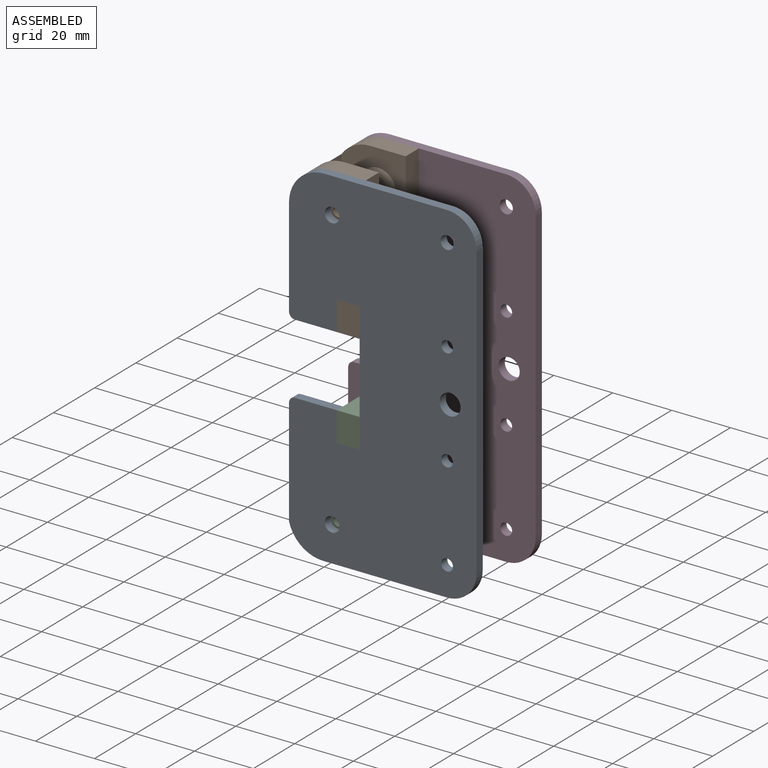
[diagram: assembled view]
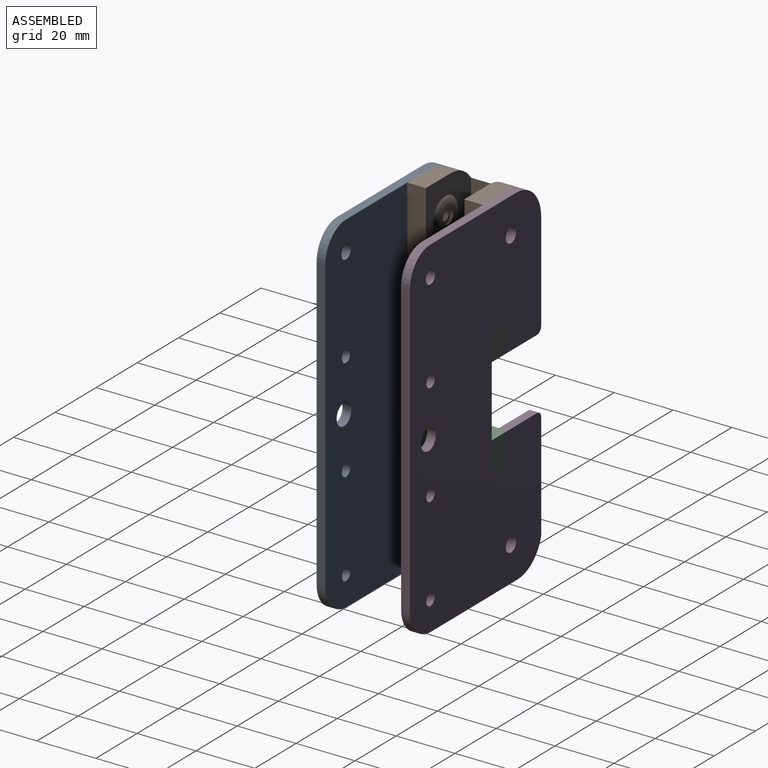
[diagram: assembled view, second angle]
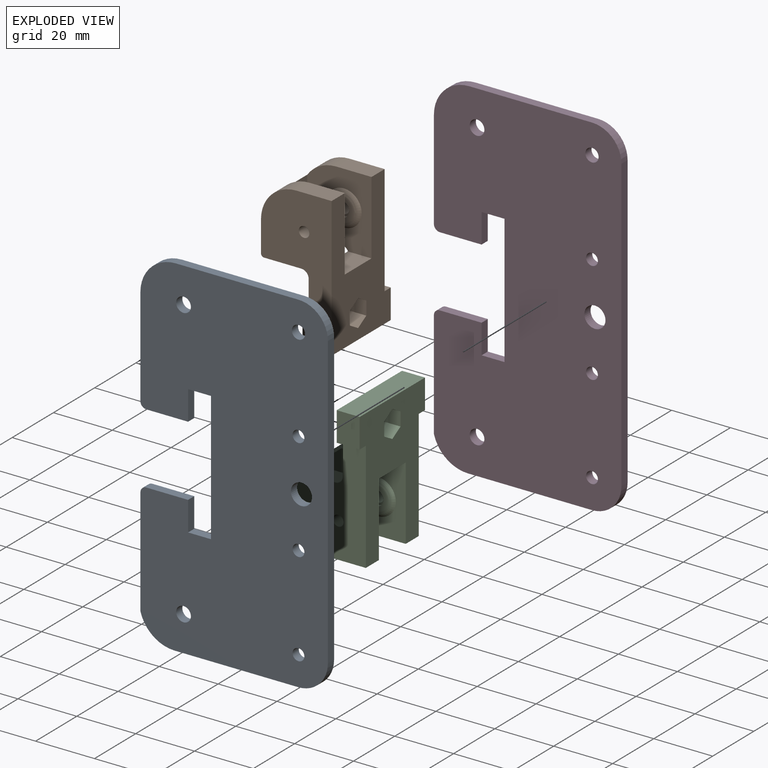
[diagram: exploded view]
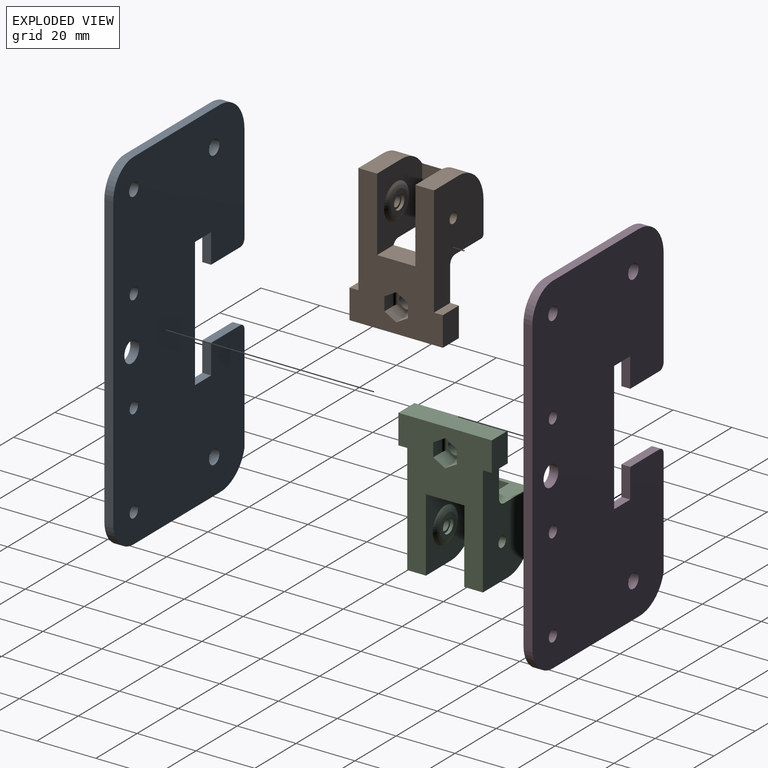
[diagram: exploded view, second angle]
ASSEMBLY  parts=4 mates=3
PART A: 27 faces, bbox 63.7x3x119 mm
  f0: plane 14.2x3mm, normal (0,0,-1), area 42.6mm2, adj f1,f24,f25,f26
  f1: plane 10x3mm, normal (1,0,0), area 30mm2, adj f0,f2,f25,f26
  f2: plane 7.8x3mm, normal (0,0,-1), area 23.4mm2, adj f1,f3,f25,f26
  f3: plane 44x3mm, normal (-1,0,0), area 132mm2, adj f2,f4,f25,f26
  f4: plane 7.8x3mm, normal (0,0,1), area 23.4mm2, adj f3,f5,f25,f26
  f5: plane 10x3mm, normal (1,0,0), area 30mm2, adj f4,f6,f25,f26
  f6: plane 14.2x3mm, normal (0,0,1), area 42.6mm2, adj f5,f7,f25,f26
  f7: cylinder r=2mm len=3mm, axis (0,1,0), area 9.4mm2, adj f6,f8,f25,f26
  f8: plane 36.5x3mm, normal (-1,0,0), area 109.5mm2, adj f7,f9,f25,f26
  f9: cylinder r=12mm len=11.62mm, axis (0,1,0), area 47.5mm2, adj f8,f10,f25,f26
  f10: plane 42.08x3mm, normal (0,0,-1), area 126.2mm2, adj f9,f11,f25,f26
  f11: cylinder r=10mm len=10mm, axis (0,1,0), area 47.1mm2, adj f10,f12,f25,f26
  f12: plane 99x3mm, normal (1,0,0), area 297mm2, adj f11,f13,f25,f26
  f13: cylinder r=10mm len=10mm, axis (0,1,0), area 47.1mm2, adj f12,f14,f25,f26
  f14: plane 41.7x3mm, normal (0,0,1), area 125.1mm2, adj f13,f15,f25,f26
  f15: cylinder r=12mm len=12mm, axis (0,1,0), area 56.5mm2, adj f14,f16,f25,f26
  f16: plane 33.5x3mm, normal (-1,0,0), area 100.5mm2, adj f15,f24,f25,f26
  f17: cylinder r=2.5mm len=5mm, axis (0,1,0), area 47.1mm2, adj f25,f26
  f18: cylinder r=2.5mm len=5mm, axis (0,1,0), area 47.1mm2, adj f25,f26
  f19: cylinder r=3.58mm len=7.16mm, axis (0,1,0), area 67.5mm2, adj f25,f26
  f20: cylinder r=2.25mm len=4.5mm, axis (0,1,0), area 42.4mm2, adj f25,f26
  f21: cylinder r=2mm len=4mm, axis (0,1,0), area 37.7mm2, adj f25,f26
  f22: cylinder r=2mm len=4mm, axis (0,1,0), area 37.7mm2, adj f25,f26
  f23: cylinder r=2mm len=4mm, axis (0,1,0), area 37.7mm2, adj f25,f26
  f24: cylinder r=2mm len=3mm, axis (0,1,0), area 9.4mm2, adj f0,f16,f25,f26
  f25: plane 119x63.7mm, normal (0,-1,0), area 6612.5mm2, adj f0,f1,f2,f3,f4,f5,f6,f7
  f26: plane 119x63.7mm, normal (0,1,0), area 6612.5mm2, adj f0,f1,f2,f3,f4,f5,f6,f7
PART B: 46 faces, bbox 24x31.7x47.5 mm
  f0: plane 37.5x24mm, normal (0,-1,0), area 633.3mm2, adj f1,f6,f7,f9,f10,f11,f13,f14
  f1: plane 47.5x31.7mm, normal (-1,0,0), area 900.3mm2, adj f0,f5,f11,f12,f15,f19,f20,f21
  f2: cylinder r=2.5mm len=5mm, axis (-1,0,0), area 59.7mm2, adj f16,f34
  f3: plane 5x5mm, normal (0,1,0), area 9.5mm2, adj f14,f24
  f4: plane 5x5mm, normal (0,-1,0), area 9.5mm2, adj f8,f22
  f5: plane 12x6.35mm, normal (0,0,1), area 76.2mm2, adj f1,f7,f15,f19
  f6: plane 25.7x12.7mm, normal (0,0,-1), area 176.2mm2, adj f0,f9,f15,f18,f19,f20,f45
  f7: cylinder r=12mm len=25.7mm, axis (0,1,0), area 334.2mm2, adj f0,f5,f10,f11,f15,f18,f19,f20
  f8: cylinder r=1.8mm len=6.35mm, axis (0,1,0), area 71.7mm2, adj f4,f15
  f9: cylinder r=2.5mm len=25.7mm, axis (0,1,0), area 63.2mm2, adj f0,f6,f13,f15,f19,f20,f21
  f10: plane 25.7x10.5mm, normal (1,0,0), area 269.8mm2, adj f0,f7,f15,f45
  f11: plane 12x6.35mm, normal (0,0,1), area 76.2mm2, adj f0,f1,f7,f20
  f12: plane 31.7x7.8mm, normal (0,0,-1), area 247.3mm2, adj f1,f13,f42,f44
  f13: plane 31.7x21.5mm, normal (1,0,0), area 499.5mm2, adj f0,f9,f12,f15,f17,f41,f42,f43
  f14: cylinder r=1.8mm len=6.35mm, axis (0,1,0), area 71.7mm2, adj f0,f3
  f15: plane 37.5x24mm, normal (0,1,0), area 633.3mm2, adj f1,f5,f6,f7,f8,f9,f10,f13
  f16: plane 7.53x7.53mm, normal (1,0,0), area 24.9mm2, adj f2,f17
  f17: torus R=3.76mm, axis (-1,0,0), area 78.5mm2, adj f13,f16
  f18: plane 18.35x13mm, normal (-1,0,0), area 238.6mm2, adj f6,f7,f19,f20
  f19: plane 25x21.85mm, normal (0,-1,0), area 398.2mm2, adj f1,f5,f6,f7,f9,f18,f21,f27
  f20: plane 25x21.85mm, normal (0,1,0), area 398.2mm2, adj f1,f6,f7,f9,f11,f18,f21,f26
  f21: plane 13x8.01mm, normal (0,0,1), area 104.1mm2, adj f1,f9,f19,f20
  f22: cylinder r=2.5mm len=5mm, axis (0,1,0), area 15.7mm2, adj f4,f23
  f23: plane 7.53x7.53mm, normal (0,-1,0), area 24.9mm2, adj f22,f27
  f24: cylinder r=2.5mm len=5mm, axis (0,-1,0), area 15.7mm2, adj f3,f25
  f25: plane 7.53x7.53mm, normal (0,1,0), area 24.9mm2, adj f24,f26
  f26: torus R=3.76mm, axis (0,-1,0), area 78.5mm2, adj f20,f25
  f27: torus R=3.76mm, axis (0,1,0), area 78.5mm2, adj f19,f23
  f28: plane 4x4mm, normal (0,0.5,-0.87), area 18.5mm2, adj f1,f29,f33,f36
  f29: plane 4x4mm, normal (0,-0.5,-0.87), area 18.5mm2, adj f1,f28,f30,f35
  f30: plane 4.62x4mm, normal (0,-1,0), area 18.5mm2, adj f1,f29,f31,f37
  f31: plane 4x4mm, normal (0,-0.5,0.87), area 18.5mm2, adj f1,f30,f32,f39
  f32: plane 4x4mm, normal (0,0.5,0.87), area 18.5mm2, adj f1,f31,f33,f40
  f33: plane 4.62x4mm, normal (0,1,0), area 18.5mm2, adj f1,f28,f32,f38
  f34: plane 6.93x6mm, normal (-1,0,0), area 11.5mm2, adj f2,f35,f36,f37,f38,f39,f40
  f35: cylinder r=1mm len=4.5mm, axis (0,0.87,-0.5), area 6.6mm2, adj f29,f34,f36,f37
  f36: cylinder r=1mm len=4.5mm, axis (0,0.87,0.5), area 6.6mm2, adj f28,f34,f35,f38
  f37: cylinder r=1mm len=4.62mm, axis (0,0,-1), area 6.6mm2, adj f30,f34,f35,f39
  f38: cylinder r=1mm len=4.62mm, axis (0,0,1), area 6.6mm2, adj f33,f34,f36,f40
  f39: cylinder r=1mm len=4.5mm, axis (0,-0.87,-0.5), area 6.6mm2, adj f31,f34,f37,f40
  f40: cylinder r=1mm len=4.5mm, axis (0,-0.87,0.5), area 6.6mm2, adj f32,f34,f38,f39
  f41: plane 7.8x3mm, normal (0,0,1), area 23.4mm2, adj f0,f1,f13,f42
  f42: plane 10x7.8mm, normal (0,-1,0), area 78mm2, adj f1,f12,f13,f41
  f43: plane 7.8x3mm, normal (0,0,1), area 23.4mm2, adj f1,f13,f15,f44
  f44: plane 10x7.8mm, normal (0,1,0), area 78mm2, adj f1,f12,f13,f43
  f45: cylinder r=1mm len=25.7mm, axis (0,-1,0), area 40.4mm2, adj f0,f6,f10,f15
PART C: same geometry as B
PART D: same geometry as A
PLACE A rot(axis=(-0.02,-0.01,1),0deg) t=(-19.7,-37.53,32.3)mm
PLACE B rot(axis=(0,0,-1),180deg) t=(-39.55,-37.53,68.05)mm
PLACE C rot(axis=(0,1,0),180deg) t=(-39.55,-11.83,-3.45)mm
PLACE D t=(-19.7,-8.83,32.3)mm
MATE fastened C.f8 <-> D.f17  axis (0,1,0) through (-36.9,-11.83,-15.2)mm
MATE fastened B.f8 <-> D.f18  axis (0,1,0) through (-36.9,-11.83,79.8)mm
MATE revolute A.f18 <-> B.f8  axis (0,1,0) through (-36.9,-37.53,79.8)mm
